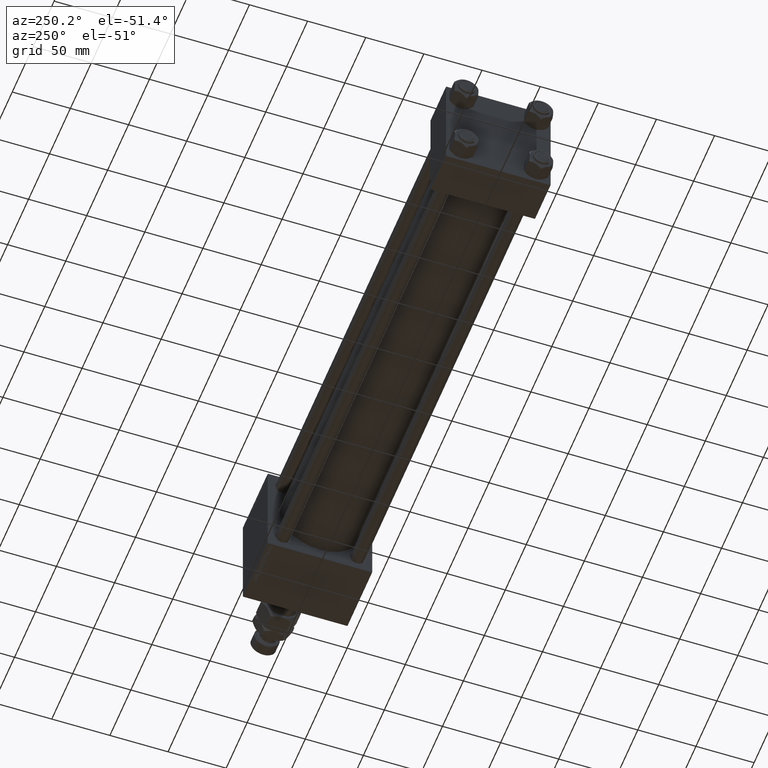
[diagram: clean part render]
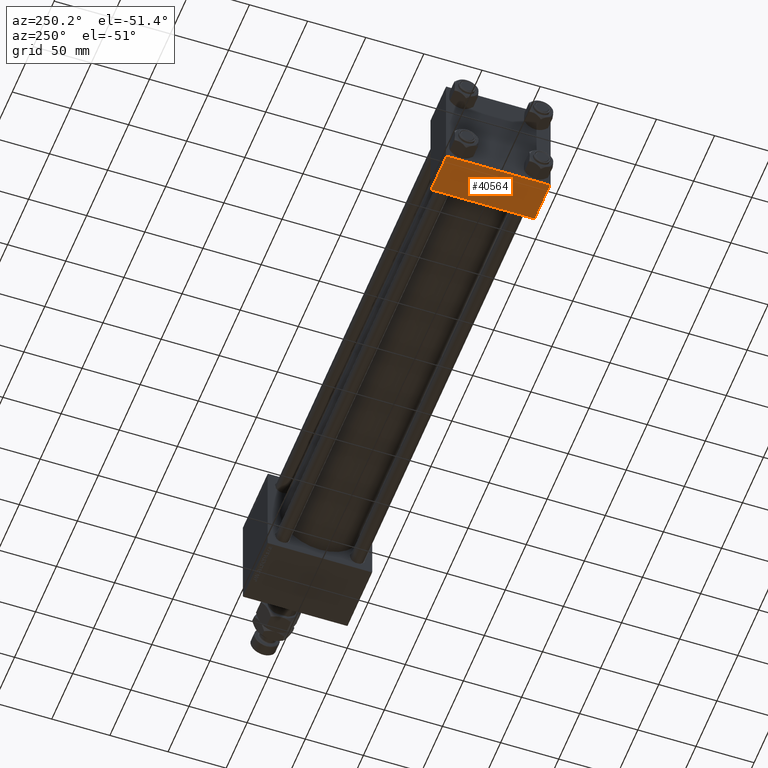
[diagram: same view with one face highlighted and labeled with its STEP entity id]
A machine part, auxiliary view. The second image highlights one B-rep face of the part: STEP entity #40564.
In plain terms, the highlighted planar face has unit normal (0, 0, -1).
Its self-contained STEP definition (entity closure, byte-faithful):
#2387 = CARTESIAN_POINT ( 'NONE',  ( 37.00000000000000000, 44.49999999999998579, -44.99999999999998579 ) ) ;
#2729 = VERTEX_POINT ( 'NONE', #10771 ) ;
#3299 = ORIENTED_EDGE ( 'NONE', *, *, #15285, .F. ) ;
#4407 = DIRECTION ( 'NONE',  ( 1.000000000000000000, 0.000000000000000000, 0.000000000000000000 ) ) ;
#5383 = VERTEX_POINT ( 'NONE', #2387 ) ;
#7876 = VECTOR ( 'NONE', #50731, 1000.000000000000000 ) ;
#8267 = VECTOR ( 'NONE', #29776, 1000.000000000000000 ) ;
#9678 = ORIENTED_EDGE ( 'NONE', *, *, #29589, .T. ) ;
#10709 = VECTOR ( 'NONE', #4407, 1000.000000000000000 ) ;
#10720 = LINE ( 'NONE', #22831, #7876 ) ;
#10771 = CARTESIAN_POINT ( 'NONE',  ( 0.000000000000000000, -44.49999999999995737, -45.00000000000000000 ) ) ;
#11708 = ORIENTED_EDGE ( 'NONE', *, *, #29002, .T. ) ;
#14457 = DIRECTION ( 'NONE',  ( 0.000000000000000000, 1.541976423090495880E-16, -1.000000000000000000 ) ) ;
#15285 = EDGE_CURVE ( 'NONE', #18625, #2729, #10720, .T. ) ;
#15733 = CARTESIAN_POINT ( 'NONE',  ( 37.00000000000000000, 44.49999999999998579, -44.99999999999998579 ) ) ;
#16675 = VECTOR ( 'NONE', #43581, 1000.000000000000000 ) ;
#18413 = PLANE ( 'NONE',  #18591 ) ;
#18591 = AXIS2_PLACEMENT_3D ( 'NONE', #34959, #14457, #23385 ) ;
#18625 = VERTEX_POINT ( 'NONE', #34054 ) ;
#22428 = CARTESIAN_POINT ( 'NONE',  ( 0.000000000000000000, -44.49999999999998579, -45.00000000000000000 ) ) ;
#22831 = CARTESIAN_POINT ( 'NONE',  ( 0.000000000000000000, 44.99999999999998579, -44.99999999999998579 ) ) ;
#23385 = DIRECTION ( 'NONE',  ( 0.000000000000000000, 1.000000000000000000, 1.541976423090495880E-16 ) ) ;
#23959 = EDGE_LOOP ( 'NONE', ( #3299, #26226, #11708, #9678 ) ) ;
#24216 = CARTESIAN_POINT ( 'NONE',  ( 37.00000000000000000, -44.49999999999995737, -45.00000000000000000 ) ) ;
#26109 = LINE ( 'NONE', #22428, #8267 ) ;
#26226 = ORIENTED_EDGE ( 'NONE', *, *, #27031, .T. ) ;
#26304 = FACE_OUTER_BOUND ( 'NONE', #23959, .T. ) ;
#27031 = EDGE_CURVE ( 'NONE', #18625, #5383, #40701, .T. ) ;
#29002 = EDGE_CURVE ( 'NONE', #5383, #48104, #48055, .T. ) ;
#29589 = EDGE_CURVE ( 'NONE', #48104, #2729, #26109, .T. ) ;
#29776 = DIRECTION ( 'NONE',  ( -1.000000000000000000, 0.000000000000000000, 0.000000000000000000 ) ) ;
#31203 = CARTESIAN_POINT ( 'NONE',  ( 37.00000000000000000, 44.99999999999998579, -44.99999999999998579 ) ) ;
#34054 = CARTESIAN_POINT ( 'NONE',  ( 0.000000000000000000, 44.49999999999998579, -44.99999999999998579 ) ) ;
#34959 = CARTESIAN_POINT ( 'NONE',  ( 37.00000000000000000, 44.99999999999998579, -44.99999999999998579 ) ) ;
#40564 = ADVANCED_FACE ( 'NONE', ( #26304 ), #18413, .T. ) ;
#40701 = LINE ( 'NONE', #15733, #10709 ) ;
#43581 = DIRECTION ( 'NONE',  ( 0.000000000000000000, -1.000000000000000000, -1.541976423090495633E-16 ) ) ;
#48055 = LINE ( 'NONE', #31203, #16675 ) ;
#48104 = VERTEX_POINT ( 'NONE', #24216 ) ;
#50731 = DIRECTION ( 'NONE',  ( 0.000000000000000000, -1.000000000000000000, -1.541976423090495633E-16 ) ) ;